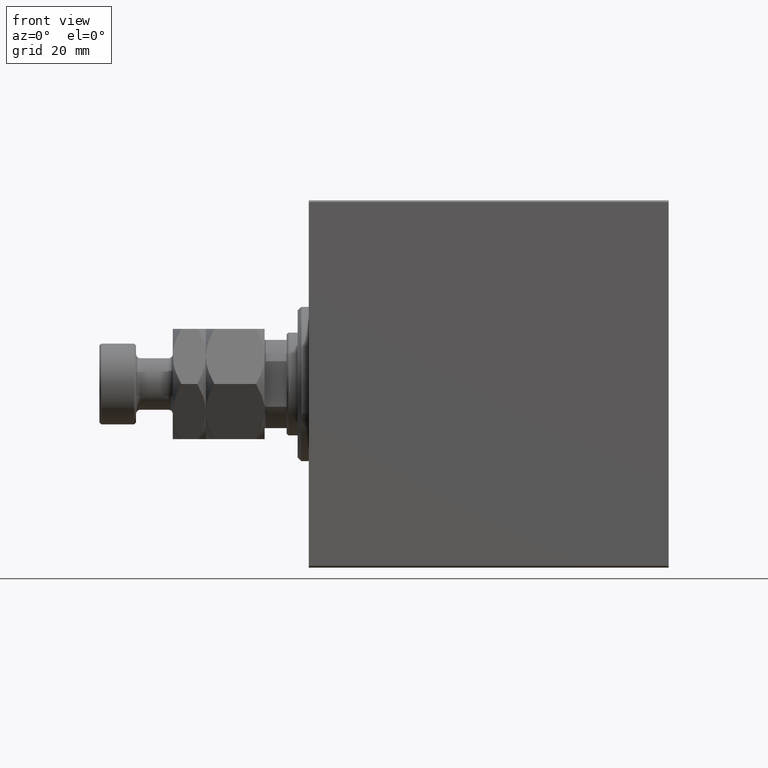
[diagram: clean part render]
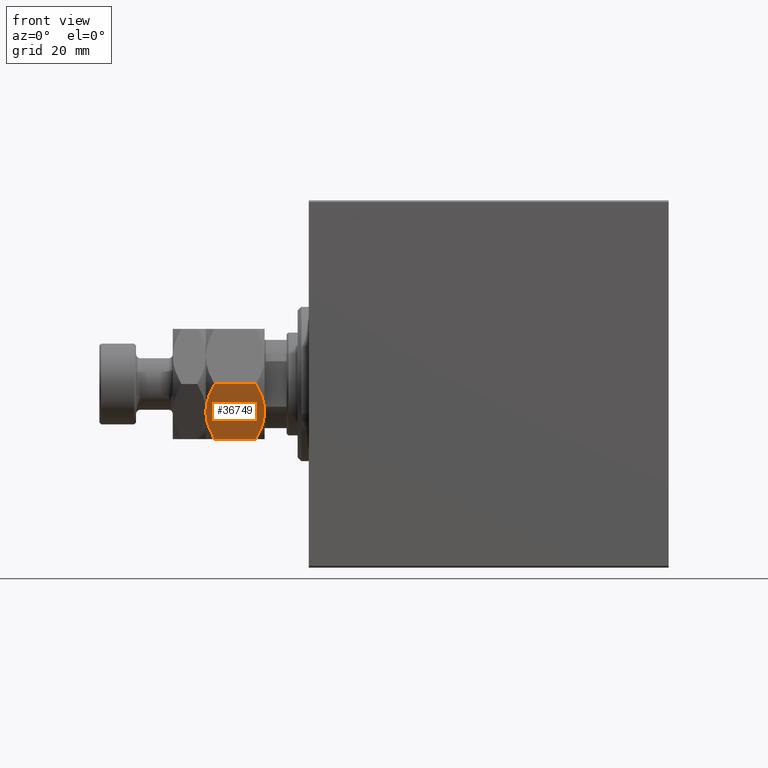
[diagram: same view with one face highlighted and labeled with its STEP entity id]
A machine part, front view. The second image highlights one B-rep face of the part: STEP entity #36749.
In plain terms, the highlighted planar face has unit normal (0, 0.866, 0.5).
Its self-contained STEP definition (entity closure, byte-faithful):
#578 = CARTESIAN_POINT ( 'NONE',  ( -8.804550678576912759, -12.23719837131869248, -4.878909776184767981E-16 ) ) ;
#1293 = DIRECTION ( 'NONE',  ( 0.5000000000000000000, 0.8660254037844387076, -0.000000000000000000 ) ) ;
#1458 = CARTESIAN_POINT ( 'NONE',  ( -3.416099238086855886E-15, -17.32050807568877104, 13.67949192431124317 ) ) ;
#1468 = VERTEX_POINT ( 'NONE', #29177 ) ;
#2529 = CARTESIAN_POINT ( 'NONE',  ( -12.62116548881249223, -10.03367478323606221, 14.93551393225599533 ) ) ;
#3185 = CARTESIAN_POINT ( 'NONE',  ( -4.881674457977378090, -14.50207201327941320, 0.2838026619462943323 ) ) ;
#3373 = CARTESIAN_POINT ( 'NONE',  ( -14.99999999999999645, -8.660254037844389075, 2.320508075688762606 ) ) ;
#3695 = EDGE_LOOP ( 'NONE', ( #40513, #21887, #43534, #34245, #27993, #16940 ) ) ;
#4035 = LINE ( 'NONE', #36211, #15367 ) ;
#6195 = CARTESIAN_POINT ( 'NONE',  ( -6.843123817691746602, -13.36962869744650284, -3.760826285809093999E-16 ) ) ;
#6706 = CARTESIAN_POINT ( 'NONE',  ( -10.75222765045651308, -11.11270654730956409, 15.55242859148697576 ) ) ;
#6924 = CARTESIAN_POINT ( 'NONE',  ( -7.500000000000001776, -12.99038105676658361, 16.00000000000000000 ) ) ;
#7566 = CARTESIAN_POINT ( 'NONE',  ( -7.500000000000001776, -12.99038105676658361, 16.00000000000000000 ) ) ;
#8317 = EDGE_CURVE ( 'NONE', #25836, #1468, #42285, .T. ) ;
#8697 = PLANE ( 'NONE',  #25736 ) ;
#10128 = CARTESIAN_POINT ( 'NONE',  ( -2.378834511187505996, -15.94708733029708725, 1.064486067744005560 ) ) ;
#10583 = CARTESIAN_POINT ( 'NONE',  ( -6.195449321423087241, -13.74356374221446586, 16.00000000000001066 ) ) ;
#10758 = CARTESIAN_POINT ( 'NONE',  ( -10.08691881950258740, -11.49682277995505331, 0.2303299219392165864 ) ) ;
#13651 = EDGE_CURVE ( 'NONE', #38938, #1468, #27425, .T. ) ;
#14209 = EDGE_CURVE ( 'NONE', #16775, #43586, #22983, .T. ) ;
#14500 = CARTESIAN_POINT ( 'NONE',  ( -2.383929548160354628, -15.94414570932928576, 14.93952096862912526 ) ) ;
#15367 = VECTOR ( 'NONE', #18377, 1000.000000000000000 ) ;
#16775 = VERTEX_POINT ( 'NONE', #32136 ) ;
#16940 = ORIENTED_EDGE ( 'NONE', *, *, #13651, .F. ) ;
#17295 = CARTESIAN_POINT ( 'NONE',  ( -6.176419610670697224, -13.75455055083996214, 0.05953537397470286957 ) ) ;
#17482 = CARTESIAN_POINT ( 'NONE',  ( -13.82525345580783060, -9.338494271363318333, 1.642267842169780279 ) ) ;
#17554 = CARTESIAN_POINT ( 'NONE',  ( -13.82389157469335750, -9.339280553791368789, 14.35851844025821933 ) ) ;
#17744 = VERTEX_POINT ( 'NONE', #18456 ) ;
#17756 = CARTESIAN_POINT ( 'NONE',  ( -4.913081180497412603, -14.48393933357810504, 15.76967007806078946 ) ) ;
#18377 = DIRECTION ( 'NONE',  ( -0.000000000000000000, -0.000000000000000000, -1.000000000000000000 ) ) ;
#18456 = CARTESIAN_POINT ( 'NONE',  ( -2.796947266322166691E-15, -17.32050807568877104, 2.320508075688761718 ) ) ;
#19593 = EDGE_CURVE ( 'NONE', #43586, #17744, #4035, .T. ) ;
#20298 = CARTESIAN_POINT ( 'NONE',  ( -14.99999999999999645, -8.660254037844389075, 13.67949192431124139 ) ) ;
#20740 = CARTESIAN_POINT ( 'NONE',  ( -12.61607045183964715, -10.03661640420386902, 1.060479031370877845 ) ) ;
#20769 = CARTESIAN_POINT ( 'NONE',  ( -14.99999999999999645, -8.660254037844389075, 16.00000000000000000 ) ) ;
#20786 = CARTESIAN_POINT ( 'NONE',  ( -3.416099238086855886E-15, -17.32050807568877104, 13.67949192431124317 ) ) ;
#21718 = VECTOR ( 'NONE', #44835, 1000.000000000000000 ) ;
#21887 = ORIENTED_EDGE ( 'NONE', *, *, #19593, .F. ) ;
#22571 = EDGE_CURVE ( 'NONE', #17744, #38938, #44802, .T. ) ;
#22983 = B_SPLINE_CURVE_WITH_KNOTS ( 'NONE', 3,
 ( #7566, #10583, #17756, #14500, #28188, #20786 ),
 .UNSPECIFIED., .F., .F.,
 ( 4, 2, 4 ),
 ( 0.008977392552884447263, 0.01343452311421656359, 0.01789165367554867991 ),
 .UNSPECIFIED. ) ;
#23787 = CARTESIAN_POINT ( 'NONE',  ( -4.247772349543487813, -14.86805556622358893, 0.4475714085130264031 ) ) ;
#23818 = CARTESIAN_POINT ( 'NONE',  ( -8.156876182308250733, -12.61113341608665905, 16.00000000000000355 ) ) ;
#24044 = CARTESIAN_POINT ( 'NONE',  ( -8.823580389329300999, -12.22621156269320331, 15.94046462602529957 ) ) ;
#25736 = AXIS2_PLACEMENT_3D ( 'NONE', #43635, #1293, #40643 ) ;
#25836 = VERTEX_POINT ( 'NONE', #20298 ) ;
#26273 = FACE_OUTER_BOUND ( 'NONE', #3695, .T. ) ;
#27425 = B_SPLINE_CURVE_WITH_KNOTS ( 'NONE', 3,
 ( #38576, #578, #10758, #20740, #17482, #3373 ),
 .UNSPECIFIED., .F., .F.,
 ( 4, 2, 4 ),
 ( 0.008977392552884445528, 0.01343452311421656012, 0.01789165367554867297 ),
 .UNSPECIFIED. ) ;
#27760 = CARTESIAN_POINT ( 'NONE',  ( -14.99999999999999645, -8.660254037844389075, 13.67949192431124139 ) ) ;
#27957 = CARTESIAN_POINT ( 'NONE',  ( -1.176108425306644722, -16.64148155974179488, 1.641481559741788665 ) ) ;
#27993 = ORIENTED_EDGE ( 'NONE', *, *, #8317, .T. ) ;
#28188 = CARTESIAN_POINT ( 'NONE',  ( -1.174746544192163844, -16.64226784216984711, 14.35773215783022572 ) ) ;
#29177 = CARTESIAN_POINT ( 'NONE',  ( -14.99999999999999645, -8.660254037844389075, 2.320508075688762606 ) ) ;
#30790 = CARTESIAN_POINT ( 'NONE',  ( -7.500000000000000000, -12.99038105676658006, 0.000000000000000000 ) ) ;
#31433 = CARTESIAN_POINT ( 'NONE',  ( -7.500000000000000000, -12.99038105676658006, 0.000000000000000000 ) ) ;
#32136 = CARTESIAN_POINT ( 'NONE',  ( -7.500000000000001776, -12.99038105676658361, 16.00000000000000000 ) ) ;
#34245 = ORIENTED_EDGE ( 'NONE', *, *, #43303, .F. ) ;
#36211 = CARTESIAN_POINT ( 'NONE',  ( -3.035766082959412415E-15, -17.32050807568877104, 16.00000000000000000 ) ) ;
#36749 = ADVANCED_FACE ( 'NONE', ( #26273 ), #8697, .F. ) ;
#38576 = CARTESIAN_POINT ( 'NONE',  ( -7.500000000000000000, -12.99038105676658006, 0.000000000000000000 ) ) ;
#38938 = VERTEX_POINT ( 'NONE', #30790 ) ;
#40513 = ORIENTED_EDGE ( 'NONE', *, *, #22571, .F. ) ;
#40643 = DIRECTION ( 'NONE',  ( -0.8660254037844385966, 0.4999999999999999445, 0.000000000000000000 ) ) ;
#42285 = LINE ( 'NONE', #20769, #21718 ) ;
#43303 = EDGE_CURVE ( 'NONE', #25836, #16775, #44408, .T. ) ;
#43534 = ORIENTED_EDGE ( 'NONE', *, *, #14209, .F. ) ;
#43586 = VERTEX_POINT ( 'NONE', #1458 ) ;
#43635 = CARTESIAN_POINT ( 'NONE',  ( -14.99999999999999645, -8.660254037844389075, 16.00000000000000000 ) ) ;
#44408 = B_SPLINE_CURVE_WITH_KNOTS ( 'NONE', 3,
 ( #27760, #17554, #2529, #6706, #45582, #24044, #23818, #6924 ),
 .UNSPECIFIED., .F., .F.,
 ( 4, 2, 2, 4 ),
 ( 2.544309033641602453E-07, 0.004488823491893906108, 0.006733108022389176252, 0.008977392552884447263 ),
 .UNSPECIFIED. ) ;
#44802 = B_SPLINE_CURVE_WITH_KNOTS ( 'NONE', 3,
 ( #45320, #27957, #10128, #23787, #3185, #17295, #6195, #31433 ),
 .UNSPECIFIED., .F., .F.,
 ( 4, 2, 2, 4 ),
 ( 2.544309033648719118E-07, 0.004488823491893905240, 0.006733108022389175384, 0.008977392552884445528 ),
 .UNSPECIFIED. ) ;
#44835 = DIRECTION ( 'NONE',  ( -0.000000000000000000, -0.000000000000000000, -1.000000000000000000 ) ) ;
#45320 = CARTESIAN_POINT ( 'NONE',  ( -2.796947266322166691E-15, -17.32050807568877104, 2.320508075688761718 ) ) ;
#45582 = CARTESIAN_POINT ( 'NONE',  ( -10.11832554202262102, -11.47869010025374692, 15.71619733805371411 ) ) ;